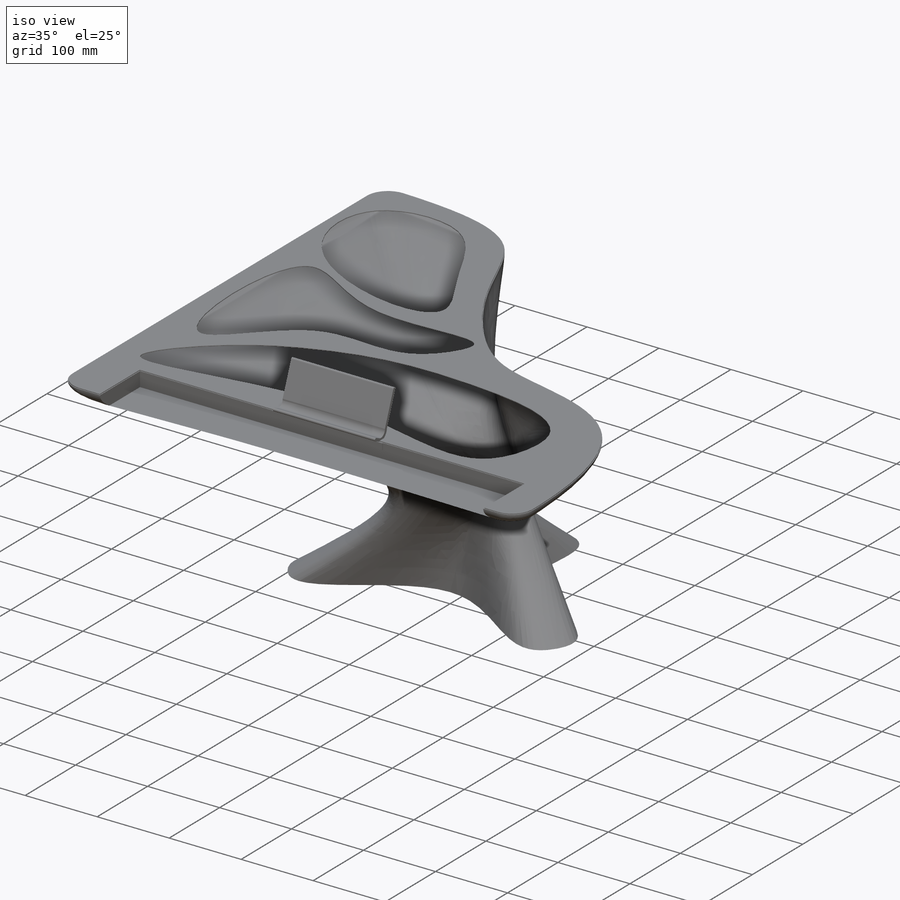
[diagram: iso view]
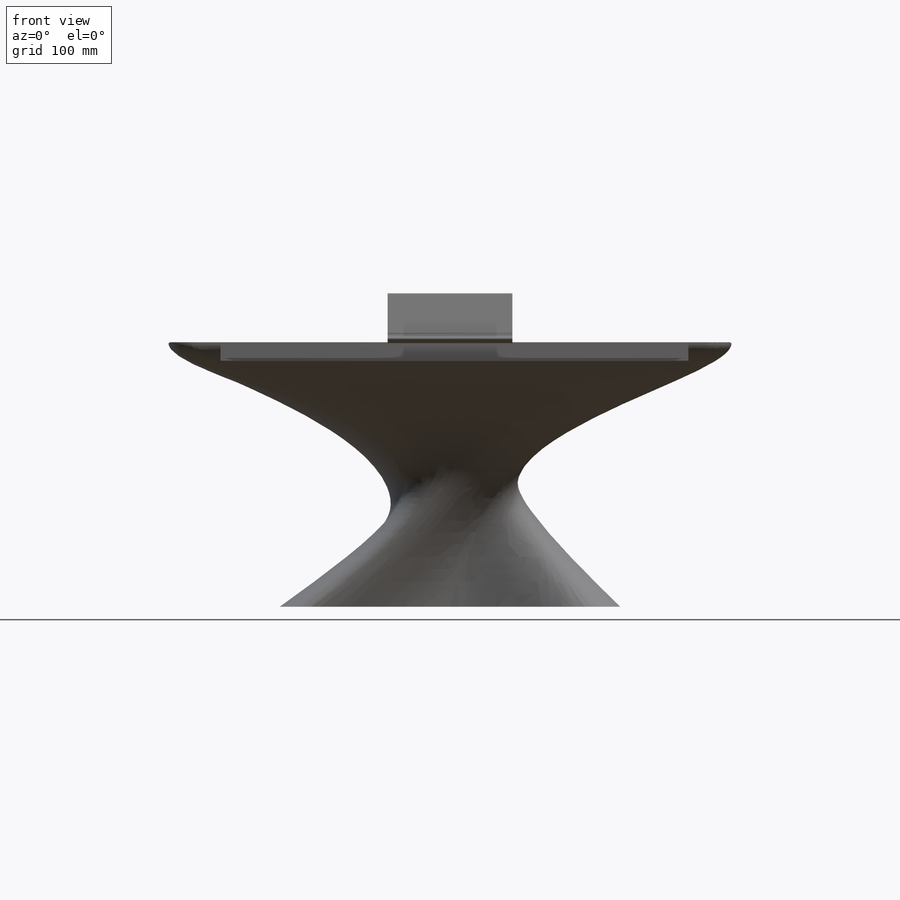
[diagram: front view]
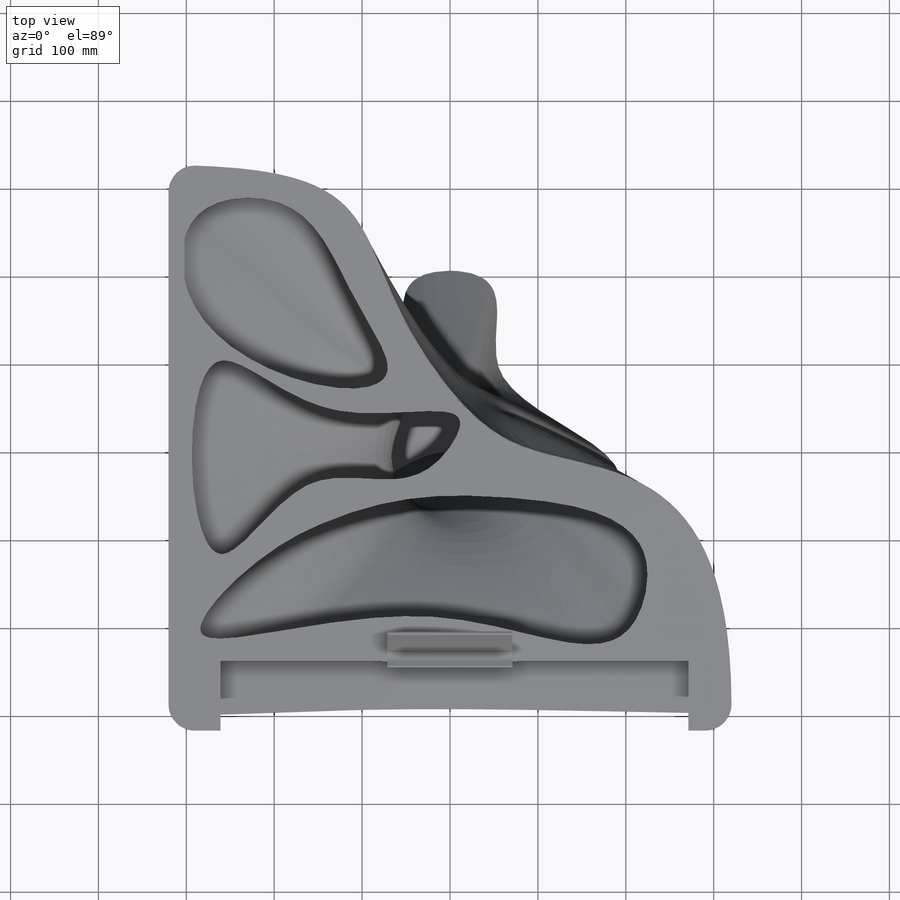
[diagram: top view]
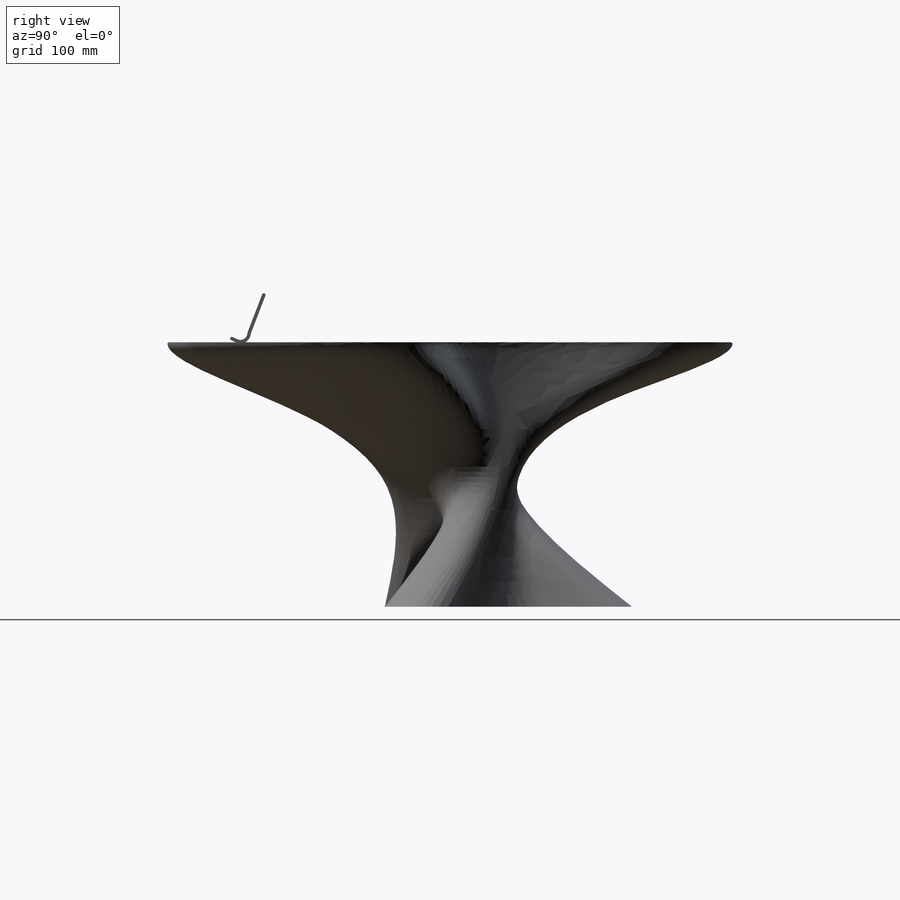
[diagram: right view]
SOLIDWORKS PART (.sldprt)
format: sldprt  version: not decoded by parser v0  size: 804,352 bytes
history: native  units: mm
features: sketch x13, plane x3, cut_extrude x3, extrude x2, material x1, fillet x1, shell x1 (+12 scaffold rows collapsed)
feature tree (36):
  scaffold x12  (default folders/planes/origin — collapsed)
  material  "Material <not specified>"
  sketch  "Sketch1"  dims[D1=30.0mm]
  plane  "Plane1"  Offset=300mm
  sketch  "Sketch2"  dims[D1=~283.347787mm]
  sketch  "Sketch3"  dims[D1=300.0mm]
  plane  "Plane2"
  sketch  "Sketch4"
  plane  "Plane3"  Offset=150mm
  sketch  "Sketch16"  dims[D1=~45.145938mm]
  sketch  "Sketch6"  dims[D1=~180.054675mm D2=~593.914485mm]
  cut_extrude  "Cut-Extrude2"  Depth=20mm
  sketch  "Sketch7"
  cut_extrude  "Cut-Extrude3"  Depth=1093mm
  fillet  "Fillet3"  Radius=10mm
  shell  "Shell5"  Thickness=1mm
  sketch  "Sketch10"  dims[D1=1.0mm]
  sketch  "Sketch11"  dims[c1.D1=~44.427922mm c1.D2=~62.763255mm c2.D1=~38.781473mm]
  cut_extrude  "Cut-Extrude4"  Depth=142mm
  sketch  "Sketch12"  dims[D1=~2.678864mm D2=2.0mm D3=2.0mm]
  extrude  "Boss-Extrude2"  [1 undecoded]
  sketch  "Sketch13"
  sketch  "Sketch14"  dims[D1=~37.306121mm]
  sketch  "Sketch15"  dims[D1=~8.253265mm D2=~153.170317mm]
  extrude  "Boss-Extrude4"  Depth=1mm
decode coverage: 16 of 20 modeling features carry decoded parameters
note: ~ marks probable driven/reference dimensions
note: 1 parameter value undecoded
note: suppression state not decoded; provenance and decode notes live in map.json
